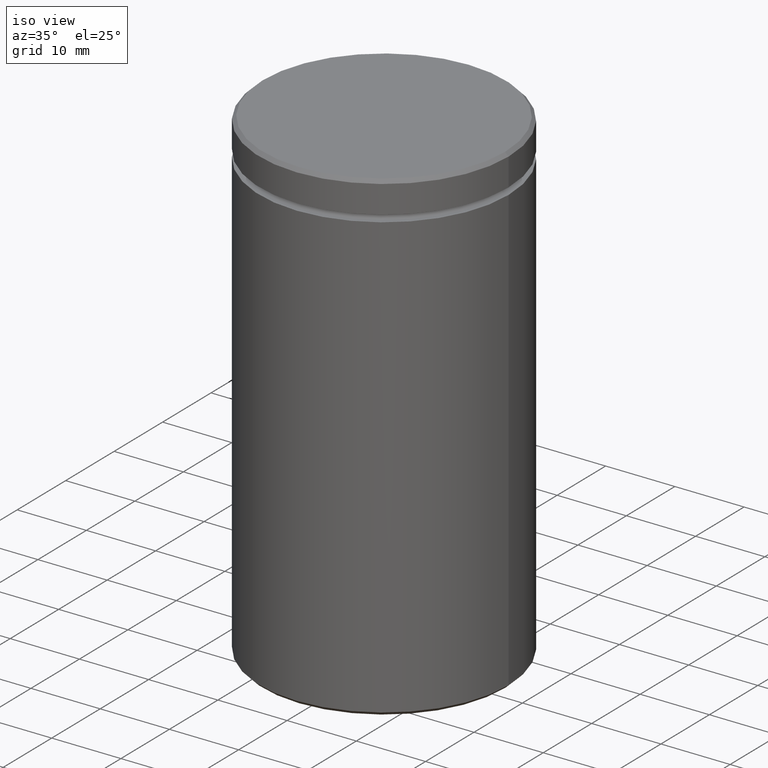
[diagram: clean part render]
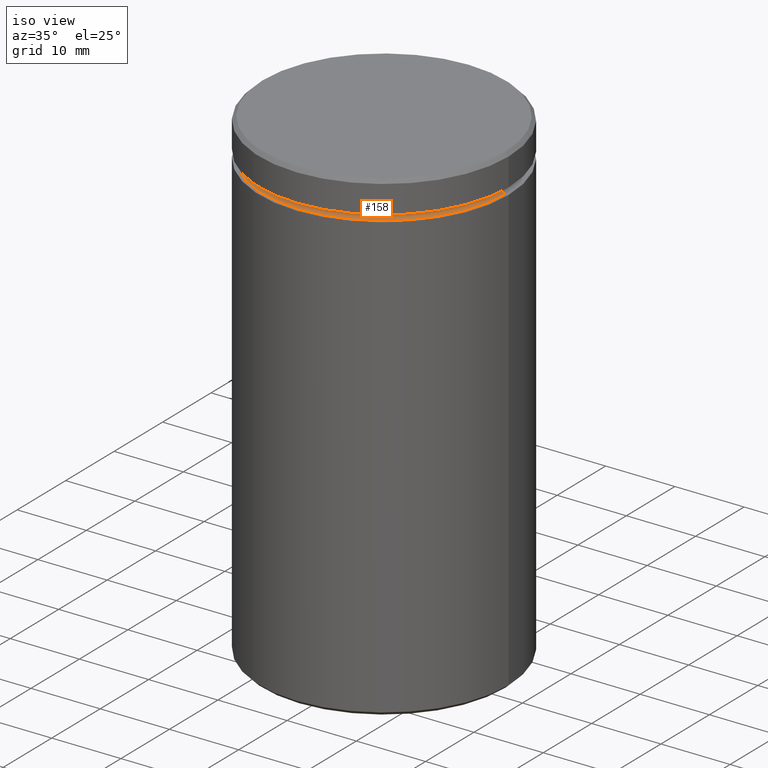
[diagram: same view with one face highlighted and labeled with its STEP entity id]
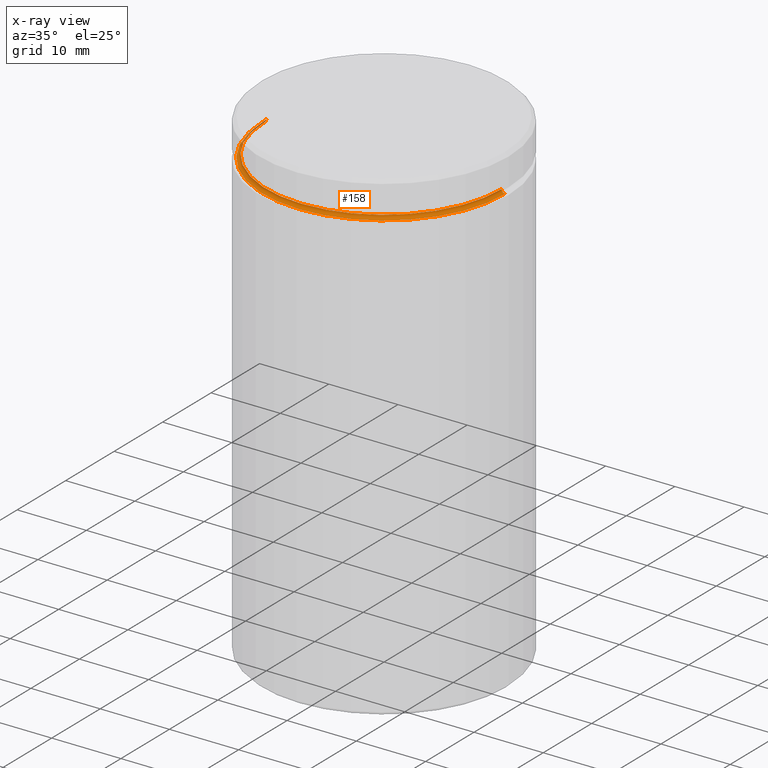
[diagram: x-ray of the same camera — body ghosted, the highlighted face saturated]
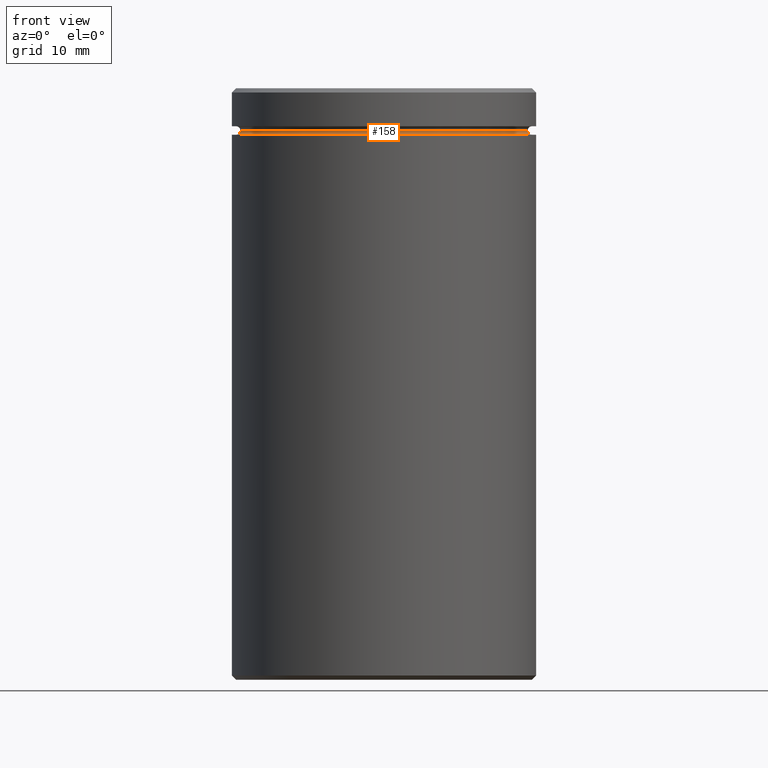
[diagram: same view with one face highlighted and labeled with its STEP entity id]
A machine part, iso view. The second image highlights one B-rep face of the part: STEP entity #158.
The next image is the same camera in x-ray: the body ghosted, the highlighted face saturated — about 4% of this face is hidden behind the body in this view.
A second angle (front view) of the same face is appended — the face is thin or edge-on in the first view.
In plain terms, the highlighted toroidal blend (fillet) surface has major radius 17.5 mm and minor (blend) radius 0.5 mm.
Its self-contained STEP definition (entity closure, byte-faithful):
#24 = CIRCLE ( 'NONE', #352, 0.5000000000000004441 ) ;
#27 = FACE_OUTER_BOUND ( 'NONE', #385, .T. ) ;
#40 = ORIENTED_EDGE ( 'NONE', *, *, #107, .F. ) ;
#47 = DIRECTION ( 'NONE',  ( 1.224646799147353207E-16, 1.000000000000000000, 0.000000000000000000 ) ) ;
#54 = DIRECTION ( 'NONE',  ( -1.000000000000000000, 1.224646799147349509E-16, 0.000000000000000000 ) ) ;
#81 = EDGE_CURVE ( 'NONE', #161, #326, #398, .T. ) ;
#93 = EDGE_CURVE ( 'NONE', #541, #326, #24, .T. ) ;
#96 = CARTESIAN_POINT ( 'NONE',  ( -17.49999999999999645, 2.143131898507867854E-15, -5.500000000000000000 ) ) ;
#107 = EDGE_CURVE ( 'NONE', #541, #191, #556, .T. ) ;
#158 = ADVANCED_FACE ( 'NONE', ( #27 ), #388, .F. ) ;
#161 = VERTEX_POINT ( 'NONE', #166 ) ;
#163 = CARTESIAN_POINT ( 'NONE',  ( -16.99999999999999645, 2.112515728529184067E-15, -4.999999999999999112 ) ) ;
#166 = CARTESIAN_POINT ( 'NONE',  ( 17.49999999999999645, 0.000000000000000000, -5.500000000000000000 ) ) ;
#167 = AXIS2_PLACEMENT_3D ( 'NONE', #180, #524, #254 ) ;
#177 = CARTESIAN_POINT ( 'NONE',  ( 16.99999999999999645, 0.000000000000000000, -4.999999999999999112 ) ) ;
#180 = CARTESIAN_POINT ( 'NONE',  ( 0.000000000000000000, 0.000000000000000000, -4.999999999999999112 ) ) ;
#189 = CARTESIAN_POINT ( 'NONE',  ( 0.000000000000000000, 0.000000000000000000, -5.500000000000000000 ) ) ;
#191 = VERTEX_POINT ( 'NONE', #177 ) ;
#197 = ORIENTED_EDGE ( 'NONE', *, *, #433, .F. ) ;
#217 = ORIENTED_EDGE ( 'NONE', *, *, #93, .T. ) ;
#254 = DIRECTION ( 'NONE',  ( 1.000000000000000000, 0.000000000000000000, 0.000000000000000000 ) ) ;
#265 = CARTESIAN_POINT ( 'NONE',  ( 0.000000000000000000, 0.000000000000000000, -4.999999999999999112 ) ) ;
#288 = DIRECTION ( 'NONE',  ( 0.000000000000000000, 0.000000000000000000, -1.000000000000000000 ) ) ;
#326 = VERTEX_POINT ( 'NONE', #96 ) ;
#333 = DIRECTION ( 'NONE',  ( 0.000000000000000000, 0.000000000000000000, -1.000000000000000000 ) ) ;
#334 = DIRECTION ( 'NONE',  ( 0.000000000000000000, -1.000000000000000000, 0.000000000000000000 ) ) ;
#345 = DIRECTION ( 'NONE',  ( -0.000000000000000000, -0.000000000000000000, 1.000000000000000000 ) ) ;
#352 = AXIS2_PLACEMENT_3D ( 'NONE', #448, #47, #54 ) ;
#374 = ORIENTED_EDGE ( 'NONE', *, *, #81, .F. ) ;
#375 = CIRCLE ( 'NONE', #386, 0.5000000000000004441 ) ;
#385 = EDGE_LOOP ( 'NONE', ( #40, #217, #374, #197 ) ) ;
#386 = AXIS2_PLACEMENT_3D ( 'NONE', #455, #334, #288 ) ;
#388 = TOROIDAL_SURFACE ( 'NONE', #548, 17.49999999999999645, 0.5000000000000000000 ) ;
#398 = CIRCLE ( 'NONE', #459, 17.49999999999999645 ) ;
#433 = EDGE_CURVE ( 'NONE', #191, #161, #375, .T. ) ;
#448 = CARTESIAN_POINT ( 'NONE',  ( -17.49999999999999645, 2.143131898507867854E-15, -4.999999999999999112 ) ) ;
#455 = CARTESIAN_POINT ( 'NONE',  ( 17.49999999999999645, 0.000000000000000000, -4.999999999999999112 ) ) ;
#459 = AXIS2_PLACEMENT_3D ( 'NONE', #189, #333, #492 ) ;
#492 = DIRECTION ( 'NONE',  ( 1.000000000000000000, 0.000000000000000000, 0.000000000000000000 ) ) ;
#520 = DIRECTION ( 'NONE',  ( 1.000000000000000000, 0.000000000000000000, 0.000000000000000000 ) ) ;
#524 = DIRECTION ( 'NONE',  ( -0.000000000000000000, -0.000000000000000000, 1.000000000000000000 ) ) ;
#541 = VERTEX_POINT ( 'NONE', #163 ) ;
#548 = AXIS2_PLACEMENT_3D ( 'NONE', #265, #345, #520 ) ;
#556 = CIRCLE ( 'NONE', #167, 16.99999999999999645 ) ;